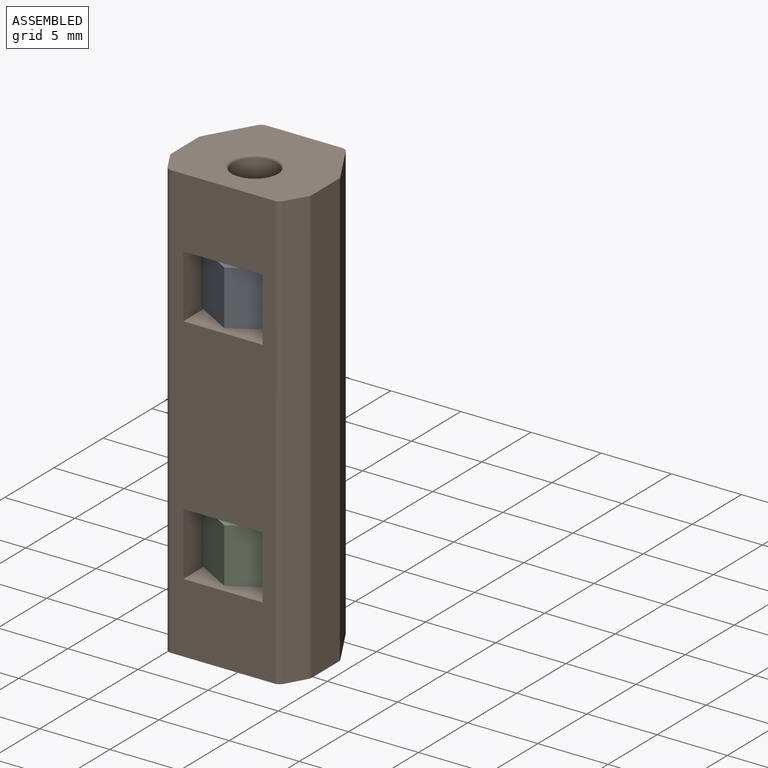
[diagram: assembled view]
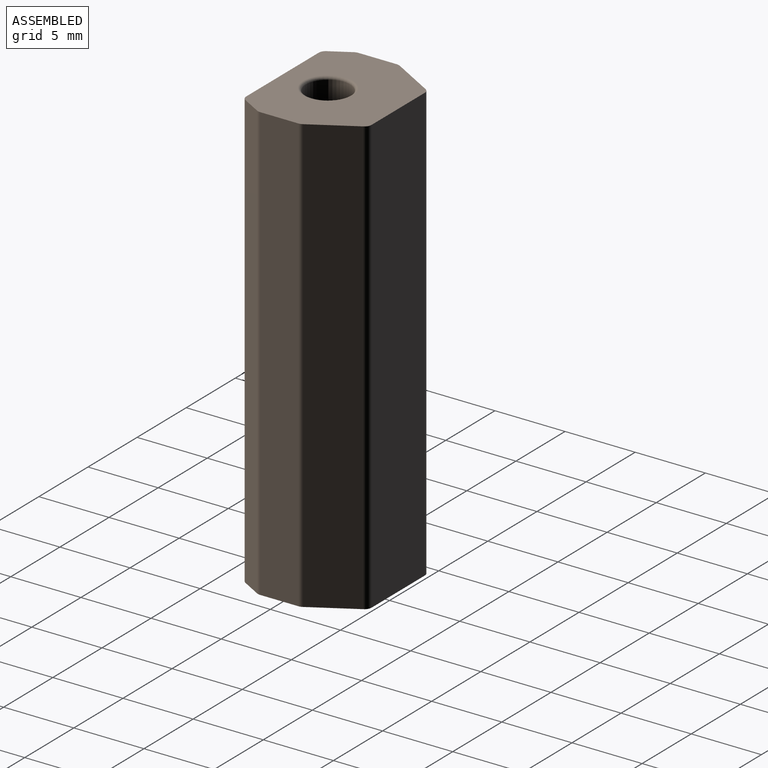
[diagram: assembled view, second angle]
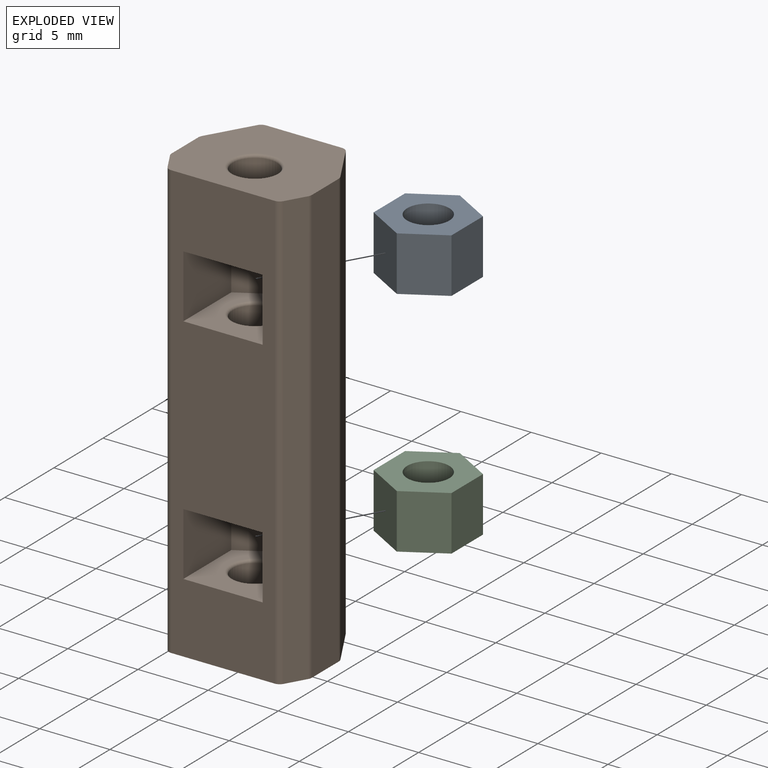
[diagram: exploded view]
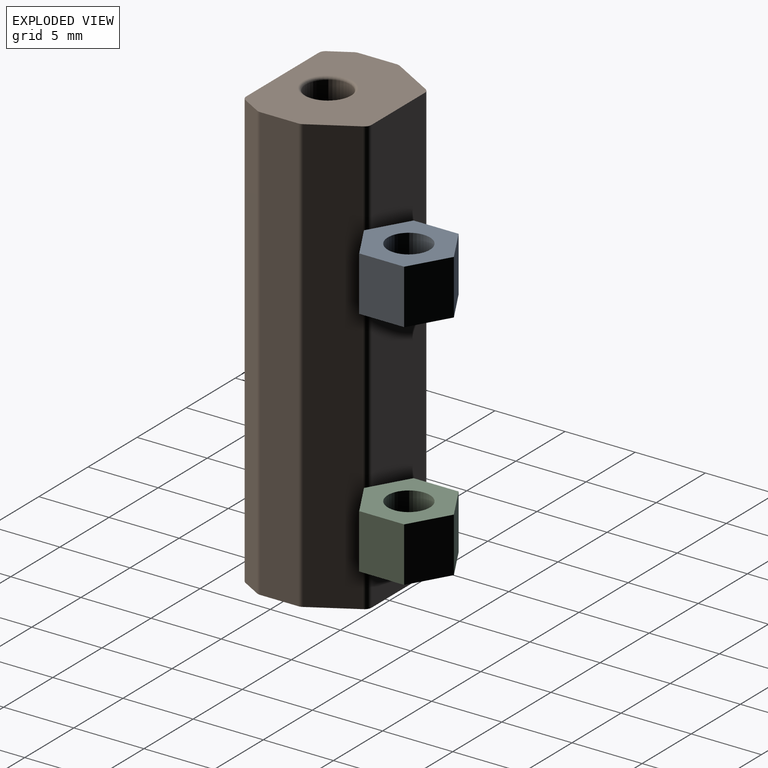
[diagram: exploded view, second angle]
ASSEMBLY  parts=3 mates=2
PART A: 9 faces, bbox 5.6x6.4x3.9 mm
  f0: plane 3.9x3.2mm, normal (1,0,0), area 12.5mm2, adj f1,f5,f7,f8
  f1: plane 3.9x2.78mm, normal (0.5,0.87,0), area 12.5mm2, adj f0,f2,f7,f8
  f2: plane 3.9x2.78mm, normal (-0.5,0.87,0), area 12.5mm2, adj f1,f3,f7,f8
  f3: plane 3.9x3.2mm, normal (-1,0,0), area 12.5mm2, adj f2,f4,f7,f8
  f4: plane 3.9x2.78mm, normal (-0.5,-0.87,0), area 12.5mm2, adj f3,f5,f7,f8
  f5: plane 3.9x2.78mm, normal (0.5,-0.87,0), area 12.5mm2, adj f0,f4,f7,f8
  f6: cylinder r=1.5mm len=3.9mm, axis (0,0,-1), area 36.8mm2, adj f7,f8
  f7: plane 6.41x5.55mm, normal (0,0,1), area 19.6mm2, adj f0,f1,f2,f3,f4,f5,f6
  f8: plane 6.41x5.55mm, normal (0,0,-1), area 19.6mm2, adj f0,f1,f2,f3,f4,f5,f6
PART B: 42 faces, bbox 10x8.3x31.1 mm
  f0: plane 31.1x2.75mm, normal (1,0,0), area 85.5mm2, adj f1,f5,f28,f33
  f1: plane 10x8.25mm, normal (0,0,1), area 63.8mm2, adj f0,f2,f3,f4,f24,f25,f26,f27
  f2: plane 31.1x2.75mm, normal (-1,0,0), area 85.5mm2, adj f1,f5,f31,f34
  f3: plane 31.1x5.42mm, normal (0,1,0), area 168.6mm2, adj f1,f5,f29,f30
  f4: plane 31.1x7.38mm, normal (0,-1,0), area 178.7mm2, adj f1,f5,f6,f7,f8,f9,f10,f11
  f5: plane 10x8.25mm, normal (0,0,-1), area 63.8mm2, adj f0,f2,f3,f4,f24,f25,f26,f27
  f6: plane 6.51x5.65mm, normal (0,0,1), area 22.3mm2, adj f4,f8,f9,f18,f19,f38
  f7: plane 6.51x5.65mm, normal (0,0,-1), area 22.3mm2, adj f4,f8,f9,f18,f19,f39
  f8: plane 4.88x4.5mm, normal (1,0,0), area 22mm2, adj f4,f6,f7,f18
  f9: plane 4.88x4.5mm, normal (-1,0,0), area 22mm2, adj f4,f6,f7,f19
  f10: plane 6.51x5.65mm, normal (0,0,-1), area 22.3mm2, adj f4,f12,f13,f20,f21,f36
  f11: plane 6.51x5.65mm, normal (0,0,1), area 22.3mm2, adj f4,f12,f13,f20,f21,f37
  f12: plane 4.88x4.5mm, normal (1,0,0), area 22mm2, adj f4,f10,f11,f20
  f13: plane 4.88x4.5mm, normal (-1,0,0), area 22mm2, adj f4,f10,f11,f21
  f14: cylinder r=1.57mm len=3.15mm, axis (0,0,1), area 18.3mm2, adj f22,f36
  f15: cylinder r=1.57mm len=3.15mm, axis (0,0,1), area 18.3mm2, adj f23,f38
  f16: cylinder r=1.57mm len=4.6mm, axis (0,0,1), area 45.5mm2, adj f37,f40
  f17: cylinder r=1.57mm len=4.6mm, axis (0,0,1), area 45.5mm2, adj f39,f41
  f18: plane 4.5x2.83mm, normal (0.5,-0.87,0), area 14.7mm2, adj f6,f7,f8,f19
  f19: plane 4.5x2.83mm, normal (-0.5,-0.87,0), area 14.7mm2, adj f6,f7,f9,f18
  f20: plane 4.5x2.83mm, normal (0.5,-0.87,0), area 14.7mm2, adj f10,f11,f12,f21
  f21: plane 4.5x2.83mm, normal (-0.5,-0.87,0), area 14.7mm2, adj f10,f11,f13,f20
  f22: plane 3.15x3.15mm, normal (0,0,-1), area 7.8mm2, adj f14
  f23: plane 3.15x3.15mm, normal (0,0,1), area 7.8mm2, adj f15
  f24: plane 31.1x1.4mm, normal (-0.87,-0.5,0), area 50.3mm2, adj f1,f5,f34,f35
  f25: plane 31.1x3.1mm, normal (0.87,0.5,0), area 111.3mm2, adj f1,f5,f28,f29
  f26: plane 31.1x3.1mm, normal (-0.87,0.5,0), area 111.3mm2, adj f1,f5,f30,f31
  f27: plane 31.1x1.4mm, normal (0.87,-0.5,0), area 50.3mm2, adj f1,f5,f32,f33
  f28: cylinder r=0.5mm len=31.1mm, axis (0,0,-1), area 8.1mm2, adj f0,f1,f5,f25
  f29: cylinder r=0.5mm len=31.1mm, axis (0,0,1), area 16.3mm2, adj f1,f3,f5,f25
  f30: cylinder r=0.5mm len=31.1mm, axis (0,0,1), area 16.3mm2, adj f1,f3,f5,f26
  f31: cylinder r=0.5mm len=31.1mm, axis (0,0,1), area 8.1mm2, adj f1,f2,f5,f26
  f32: cylinder r=0.5mm len=31.1mm, axis (0,0,1), area 16.3mm2, adj f1,f4,f5,f27
  f33: cylinder r=0.5mm len=31.1mm, axis (0,0,1), area 8.1mm2, adj f0,f1,f5,f27
  f34: cylinder r=0.5mm len=31.1mm, axis (0,0,1), area 8.1mm2, adj f1,f2,f5,f24
  f35: cylinder r=0.5mm len=31.1mm, axis (0,0,-1), area 16.3mm2, adj f1,f4,f5,f24
  f36: torus R=1.78mm, axis (0,0,-1), area 3.3mm2, adj f10,f14
  f37: torus R=1.78mm, axis (0,0,-1), area 3.3mm2, adj f11,f16
  f38: torus R=1.78mm, axis (0,0,1), area 3.3mm2, adj f6,f15
  f39: torus R=1.78mm, axis (0,0,1), area 3.3mm2, adj f7,f17
  f40: torus R=1.78mm, axis (0,0,-1), area 3.3mm2, adj f5,f16
  f41: torus R=1.78mm, axis (0,0,-1), area 3.3mm2, adj f1,f17
PART C: same geometry as A
PLACE A rot(axis=(1,0,0),180deg) t=(-0.38,0.38,11.1)mm
PLACE B t=(-0.4,0.34,0.85)mm fixed
PLACE C rot(axis=(0.87,-0.5,0),180deg) t=(-0.38,0.38,-5.5)mm
MATE fastened C.f4 <-> B.f21  axis (0.5,0.87,0) through (1.01,2.78,-7.45)mm
MATE fastened A.f5 <-> B.f19  axis (0.5,0.87,0) through (1.01,2.78,9.15)mm
